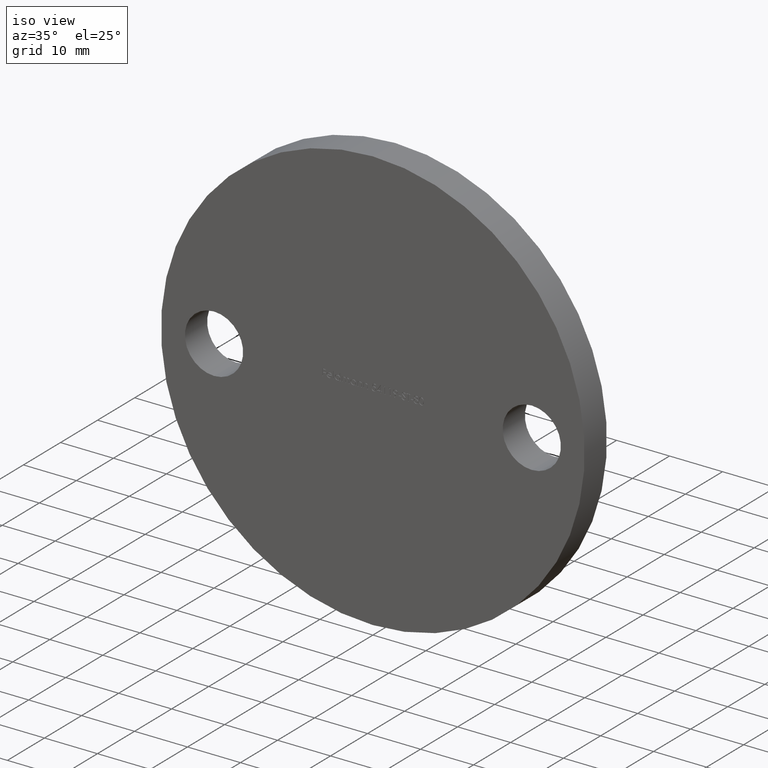
[diagram: clean part render]
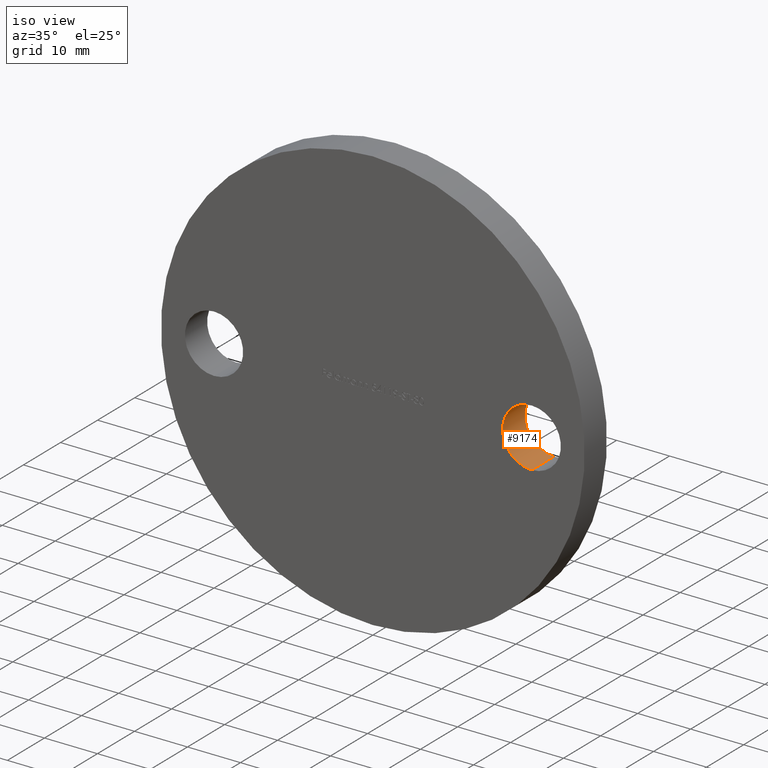
[diagram: same view with one face highlighted and labeled with its STEP entity id]
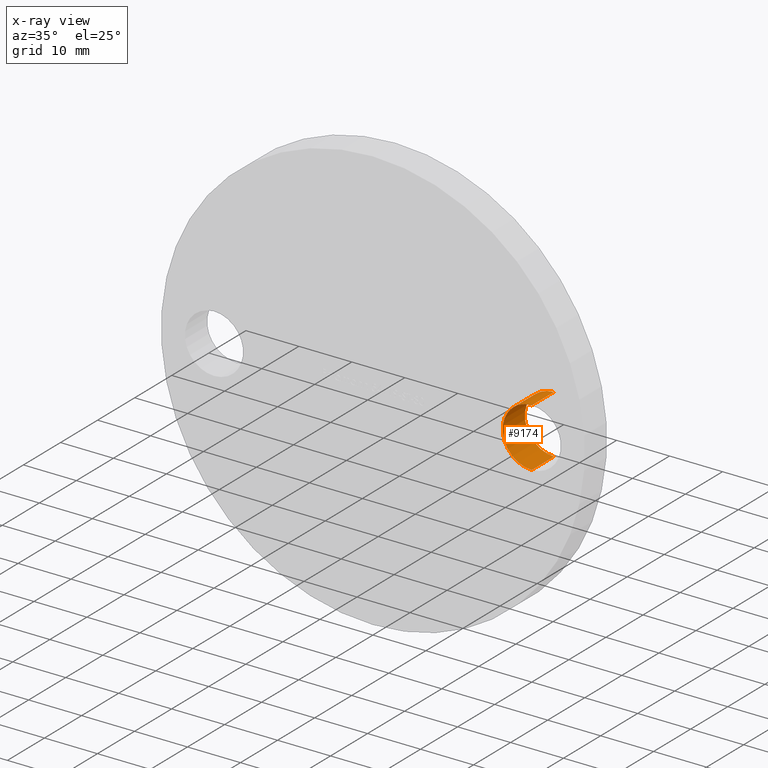
[diagram: x-ray of the same camera — body ghosted, the highlighted face saturated]
A machine part, iso view. The second image highlights one B-rep face of the part: STEP entity #9174.
The next image is the same camera in x-ray: the body ghosted, the highlighted face saturated — about 0% of this face is hidden behind the body in this view.
In plain terms, the highlighted cylindrical surface (edge-blend (fillet) strip) has radius 5.5 mm, axis along (-0, 1, -0).
Its self-contained STEP definition (entity closure, byte-faithful):
#1047 = CARTESIAN_POINT ( 'NONE',  ( 30.00000000000000000, 0.0000000000000000000, -7.347880794884118400E-015 ) ) ;
#1555 = AXIS2_PLACEMENT_3D ( 'NONE', #1047, #5214, #2097 ) ;
#1569 = DIRECTION ( 'NONE',  ( 0.0000000000000000000, 1.000000000000000000, 0.0000000000000000000 ) ) ;
#1578 = CARTESIAN_POINT ( 'NONE',  ( 30.00000000000000000, 0.0000000000000000000, 5.499999999999989300 ) ) ;
#2097 = DIRECTION ( 'NONE',  ( 0.0000000000000000000, 0.0000000000000000000, 1.000000000000000000 ) ) ;
#2813 = CARTESIAN_POINT ( 'NONE',  ( 30.00000000000000000, 6.000000000000000000, 5.499999999999989300 ) ) ;
#2862 = CARTESIAN_POINT ( 'NONE',  ( 30.00000000000000000, 6.000000000000000000, -5.500000000000003600 ) ) ;
#3026 = CIRCLE ( 'NONE', #5289, 5.499999999999996400 ) ;
#3303 = ORIENTED_EDGE ( 'NONE', *, *, #9140, .F. ) ;
#3368 = CIRCLE ( 'NONE', #8759, 5.499999999999996400 ) ;
#3403 = EDGE_CURVE ( 'NONE', #7926, #9574, #3368, .T. ) ;
#3506 = VECTOR ( 'NONE', #8762, 1000.000000000000000 ) ;
#4285 = EDGE_LOOP ( 'NONE', ( #6124, #10143, #12865, #3303 ) ) ;
#4587 = DIRECTION ( 'NONE',  ( 0.0000000000000000000, 0.0000000000000000000, 1.000000000000000000 ) ) ;
#5214 = DIRECTION ( 'NONE',  ( -0.0000000000000000000, 1.000000000000000000, -0.0000000000000000000 ) ) ;
#5289 = AXIS2_PLACEMENT_3D ( 'NONE', #7588, #9552, #7633 ) ;
#5315 = VERTEX_POINT ( 'NONE', #8712 ) ;
#6124 = ORIENTED_EDGE ( 'NONE', *, *, #6521, .F. ) ;
#6521 = EDGE_CURVE ( 'NONE', #5315, #8493, #3026, .T. ) ;
#6616 = CARTESIAN_POINT ( 'NONE',  ( 30.00000000000000000, 6.000000000000000000, -7.347880794884118400E-015 ) ) ;
#6618 = VECTOR ( 'NONE', #12192, 1000.000000000000000 ) ;
#7588 = CARTESIAN_POINT ( 'NONE',  ( 30.00000000000000000, 0.0000000000000000000, -7.347880794884118400E-015 ) ) ;
#7633 = DIRECTION ( 'NONE',  ( 0.0000000000000000000, 0.0000000000000000000, 1.000000000000000000 ) ) ;
#7727 = FACE_OUTER_BOUND ( 'NONE', #4285, .T. ) ;
#7926 = VERTEX_POINT ( 'NONE', #2862 ) ;
#8064 = CYLINDRICAL_SURFACE ( 'NONE', #1555, 5.499999999999996400 ) ;
#8493 = VERTEX_POINT ( 'NONE', #12798 ) ;
#8712 = CARTESIAN_POINT ( 'NONE',  ( 30.00000000000000000, 0.0000000000000000000, -5.500000000000003600 ) ) ;
#8759 = AXIS2_PLACEMENT_3D ( 'NONE', #6616, #1569, #4587 ) ;
#8762 = DIRECTION ( 'NONE',  ( -0.0000000000000000000, 1.000000000000000000, -0.0000000000000000000 ) ) ;
#9140 = EDGE_CURVE ( 'NONE', #8493, #9574, #10753, .T. ) ;
#9174 = ADVANCED_FACE ( 'NONE', ( #7727 ), #8064, .F. ) ;
#9552 = DIRECTION ( 'NONE',  ( 0.0000000000000000000, 1.000000000000000000, 0.0000000000000000000 ) ) ;
#9574 = VERTEX_POINT ( 'NONE', #2813 ) ;
#10143 = ORIENTED_EDGE ( 'NONE', *, *, #11662, .T. ) ;
#10753 = LINE ( 'NONE', #1578, #6618 ) ;
#11662 = EDGE_CURVE ( 'NONE', #5315, #7926, #12679, .T. ) ;
#12192 = DIRECTION ( 'NONE',  ( -0.0000000000000000000, 1.000000000000000000, -0.0000000000000000000 ) ) ;
#12679 = LINE ( 'NONE', #12830, #3506 ) ;
#12798 = CARTESIAN_POINT ( 'NONE',  ( 30.00000000000000000, 0.0000000000000000000, 5.499999999999989300 ) ) ;
#12830 = CARTESIAN_POINT ( 'NONE',  ( 30.00000000000000000, 0.0000000000000000000, -5.500000000000003600 ) ) ;
#12865 = ORIENTED_EDGE ( 'NONE', *, *, #3403, .T. ) ;